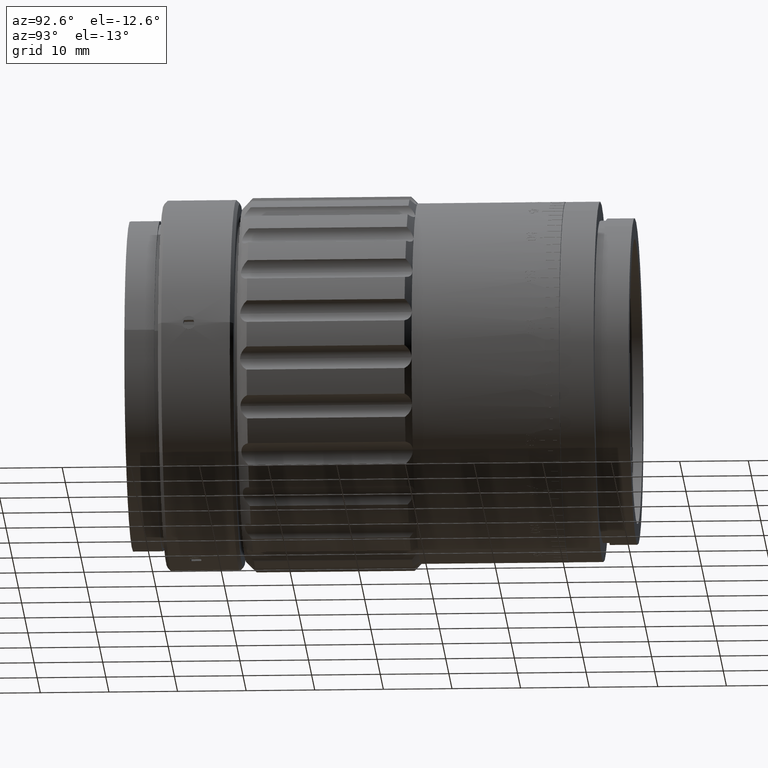
[diagram: clean part render]
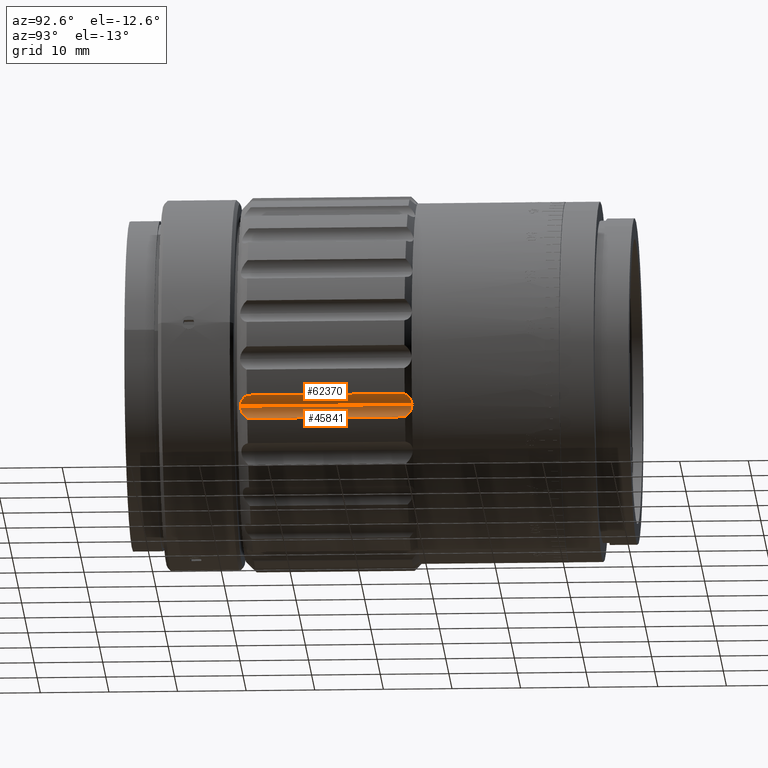
[diagram: same view with one multi-face feature highlighted, each face labeled with its STEP entity id]
A machine part, auxiliary view. The highlighted faces form ONE feature: a constant-radius fillet chain: 2 tangent blend faces with common blend radius 2 mm. The faces share edges in the B-rep.
Their STEP definitions:
[1] entity #45841 (Cylinder):
#361 = CARTESIAN_POINT ( 'NONE',  ( -13.12500000000006000, -28.21457821189758900, 22.73316684934155800 ) ) ;
#423 = B_SPLINE_CURVE_WITH_KNOTS ( 'NONE', 3,
 ( #76396, #43228, #65287, #18623, #12224, #24499, #71132, #18355, #31517, #51896, #71688, #5229, #25350, #51055 ),
 .UNSPECIFIED., .F., .F.,
 ( 4, 2, 2, 2, 2, 2, 4 ),
 ( 2.979895395329111000E-007, 0.0005735843058146349300, 0.001146870622089737100, 0.001433513780227283600, 0.001720156938364830100, 0.002006800096502376400, 0.002293443254639922900 ),
 .UNSPECIFIED. ) ;
#444 = CARTESIAN_POINT ( 'NONE',  ( -12.55499077404264000, -28.06509218753951600, 23.22307913054044100 ) ) ;
#722 = CARTESIAN_POINT ( 'NONE',  ( -12.12595701971777700, -27.21457821189765600, 24.40335358830742900 ) ) ;
#5229 = CARTESIAN_POINT ( 'NONE',  ( -12.96057895350930200, -3.222243727743240100, 22.83631678320358600 ) ) ;
#6866 = CARTESIAN_POINT ( 'NONE',  ( -12.80495319060156600, -28.18336728292411300, 22.95138981050821400 ) ) ;
#10563 = ORIENTED_EDGE ( 'NONE', *, *, #16824, .T. ) ;
#11155 = DIRECTION ( 'NONE',  ( 0.5000000000000006700, 0.0000000000000000000, -0.8660254037844382600 ) ) ;
#11705 = CARTESIAN_POINT ( 'NONE',  ( -14.12500000000006200, -2.714578211897591900, 24.46521765691043600 ) ) ;
#12109 = CARTESIAN_POINT ( 'NONE',  ( -12.95847872532791500, -28.21457821189759600, 22.82930795209932000 ) ) ;
#12224 = CARTESIAN_POINT ( 'NONE',  ( -12.28495461717044000, -3.626543446999198000, 23.66347315926434900 ) ) ;
#14138 = CARTESIAN_POINT ( 'NONE',  ( -12.40594440328831800, -27.94445593749853900, 23.43958839450126400 ) ) ;
#15299 = ORIENTED_EDGE ( 'NONE', *, *, #84805, .T. ) ;
#16824 = EDGE_CURVE ( 'NONE', #62252, #51736, #64587, .T. ) ;
#18355 = CARTESIAN_POINT ( 'NONE',  ( -12.55448674485746700, -3.364387262749400300, 23.22371866839284800 ) ) ;
#18623 = CARTESIAN_POINT ( 'NONE',  ( -12.22741002583321700, -3.735120404520082100, 23.81517680416628100 ) ) ;
#19900 = EDGE_CURVE ( 'NONE', #58534, #81024, #67540, .T. ) ;
#24499 = CARTESIAN_POINT ( 'NONE',  ( -12.40542373931104500, -3.485196456495961700, 23.44042607016169600 ) ) ;
#25350 = CARTESIAN_POINT ( 'NONE',  ( -13.04163485494421000, -3.214578211897678000, 22.78129773828057500 ) ) ;
#26398 = CARTESIAN_POINT ( 'NONE',  ( -13.12500000000006000, -28.21457821189758900, 22.73316684934155800 ) ) ;
#27538 = ORIENTED_EDGE ( 'NONE', *, *, #35908, .T. ) ;
#28956 = ORIENTED_EDGE ( 'NONE', *, *, #19900, .T. ) ;
#31517 = CARTESIAN_POINT ( 'NONE',  ( -12.61309592739448100, -3.329889188454530700, 23.15269362647157400 ) ) ;
#32812 = CARTESIAN_POINT ( 'NONE',  ( -13.12500000000006000, -2.714578211897591900, 22.73316684934155800 ) ) ;
#35016 = EDGE_LOOP ( 'NONE', ( #15299, #28956, #27538, #10563 ) ) ;
#35908 = EDGE_CURVE ( 'NONE', #81024, #62252, #68345, .T. ) ;
#40708 = CARTESIAN_POINT ( 'NONE',  ( -12.15061308000423600, -27.46505317721100100, 24.11114494454803000 ) ) ;
#43228 = CARTESIAN_POINT ( 'NONE',  ( -12.13045825504263000, -4.086325021261123100, 24.25790303709179700 ) ) ;
#45841 = ADVANCED_FACE ( 'NONE', ( #80181 ), #75696, .F. ) ;
#47396 = DIRECTION ( 'NONE',  ( -0.0000000000000000000, 1.000000000000000000, 0.0000000000000000000 ) ) ;
#47688 = CARTESIAN_POINT ( 'NONE',  ( -12.45138271275716200, -27.98758608644783400, 23.36665392907040600 ) ) ;
#51055 = CARTESIAN_POINT ( 'NONE',  ( -13.12500000000006000, -3.214578211897678500, 22.73316684934155800 ) ) ;
#51736 = VERTEX_POINT ( 'NONE', #66987 ) ;
#51896 = CARTESIAN_POINT ( 'NONE',  ( -12.74083217870751000, -3.273849528159984400, 23.01861726366457700 ) ) ;
#53169 = VECTOR ( 'NONE', #47396, 1000.000000000000000 ) ;
#54376 = CARTESIAN_POINT ( 'NONE',  ( -12.22778811058596600, -27.69496217823255100, 23.81394333517184600 ) ) ;
#57257 = DIRECTION ( 'NONE',  ( 0.0000000000000000000, -1.000000000000000000, -0.0000000000000000000 ) ) ;
#58534 = VERTEX_POINT ( 'NONE', #60824 ) ;
#60219 = CARTESIAN_POINT ( 'NONE',  ( -12.12595701971777700, -15.71457821189758900, 24.40335358830742500 ) ) ;
#60824 = CARTESIAN_POINT ( 'NONE',  ( -13.12500000000006000, -3.214578211897678500, 22.73316684934155800 ) ) ;
#62252 = VERTEX_POINT ( 'NONE', #69227 ) ;
#64587 = LINE ( 'NONE', #60219, #53169 ) ;
#65287 = CARTESIAN_POINT ( 'NONE',  ( -12.15062295426933200, -3.964274970068865800, 24.11133052577052300 ) ) ;
#66913 = CARTESIAN_POINT ( 'NONE',  ( -12.13045732573770500, -27.34280492395364300, 24.25793306616250800 ) ) ;
#66987 = CARTESIAN_POINT ( 'NONE',  ( -12.12595701971777600, -4.214578211897617200, 24.40335358830743200 ) ) ;
#67540 = LINE ( 'NONE', #32812, #75866 ) ;
#68345 = B_SPLINE_CURVE_WITH_KNOTS ( 'NONE', 3,
 ( #26398, #12109, #6866, #80895, #444, #47688, #14138, #74744, #54376, #40708, #66913, #722 ),
 .UNSPECIFIED., .F., .F.,
 ( 4, 2, 2, 2, 2, 4 ),
 ( 0.002293443254639918100, 0.002866010891116029500, 0.003152294709354083600, 0.003438578527592137800, 0.004011146164068253900, 0.004583713800544370900 ),
 .UNSPECIFIED. ) ;
#69227 = CARTESIAN_POINT ( 'NONE',  ( -12.12595701971777700, -27.21457821189765600, 24.40335358830742900 ) ) ;
#71132 = CARTESIAN_POINT ( 'NONE',  ( -12.45097098984468100, -3.441932837596963300, 23.36728391745847200 ) ) ;
#71688 = CARTESIAN_POINT ( 'NONE',  ( -12.81008659143846300, -3.252025529498173900, 22.95518548577682000 ) ) ;
#72369 = AXIS2_PLACEMENT_3D ( 'NONE', #11705, #57257, #11155 ) ;
#74744 = CARTESIAN_POINT ( 'NONE',  ( -12.28593373872502800, -27.80398875942940500, 23.66141083893508700 ) ) ;
#75696 = CYLINDRICAL_SURFACE ( 'NONE', #72369, 2.000000000000002700 ) ;
#75866 = VECTOR ( 'NONE', #78568, 1000.000000000000000 ) ;
#76396 = CARTESIAN_POINT ( 'NONE',  ( -12.12595701971777600, -4.214578211897617200, 24.40335358830743200 ) ) ;
#78568 = DIRECTION ( 'NONE',  ( 0.0000000000000000000, -1.000000000000000000, -0.0000000000000000000 ) ) ;
#80181 = FACE_OUTER_BOUND ( 'NONE', #35016, .T. ) ;
#80895 = CARTESIAN_POINT ( 'NONE',  ( -12.61355657265214900, -28.09950435885614100, 23.15217220917698900 ) ) ;
#81024 = VERTEX_POINT ( 'NONE', #361 ) ;
#84805 = EDGE_CURVE ( 'NONE', #51736, #58534, #423, .T. ) ;
[2] entity #62370 (Cylinder):
#361 = CARTESIAN_POINT ( 'NONE',  ( -13.12500000000006000, -28.21457821189758900, 22.73316684934155800 ) ) ;
#458 = ORIENTED_EDGE ( 'NONE', *, *, #17033, .T. ) ;
#513 = VERTEX_POINT ( 'NONE', #38897 ) ;
#936 = LINE ( 'NONE', #55995, #69768 ) ;
#3088 = CARTESIAN_POINT ( 'NONE',  ( -14.94273114513992000, -27.34283140253415200, 22.63423652695944100 ) ) ;
#4728 = CARTESIAN_POINT ( 'NONE',  ( -14.94275761573046800, -4.086351499841627300, 22.63425073669311900 ) ) ;
#4939 = CARTESIAN_POINT ( 'NONE',  ( -15.07094563514953500, -4.214578211897617200, 22.70306361842751700 ) ) ;
#5791 = EDGE_CURVE ( 'NONE', #513, #81024, #50696, .T. ) ;
#11484 = CARTESIAN_POINT ( 'NONE',  ( -14.12500000000006200, -2.714578211897591900, 24.46521765691043600 ) ) ;
#17033 = EDGE_CURVE ( 'NONE', #44254, #513, #936, .T. ) ;
#17101 = CARTESIAN_POINT ( 'NONE',  ( -13.29654098636863500, -28.20691269605202200, 22.64234901309474400 ) ) ;
#19900 = EDGE_CURVE ( 'NONE', #58534, #81024, #67540, .T. ) ;
#21323 = B_SPLINE_CURVE_WITH_KNOTS ( 'NONE', 3,
 ( #83463, #37693, #57815, #64481, #31277, #24551, #37979, #84591, #44697, #50242, #4728, #51376 ),
 .UNSPECIFIED., .F., .F.,
 ( 4, 2, 2, 2, 2, 4 ),
 ( 0.002293443254639922900, 0.002866010891116039500, 0.003152294709354097500, 0.003438578527592155600, 0.004011146164068266900, 0.004583713800544378700 ),
 .UNSPECIFIED. ) ;
#23514 = CARTESIAN_POINT ( 'NONE',  ( -14.80571327722585700, -27.46488145372639900, 22.57841341308878900 ) ) ;
#24551 = CARTESIAN_POINT ( 'NONE',  ( -14.01042454763591200, -3.441570337347434000, 22.46654070602527400 ) ) ;
#27509 = ORIENTED_EDGE ( 'NONE', *, *, #40010, .T. ) ;
#28089 = AXIS2_PLACEMENT_3D ( 'NONE', #11484, #50600, #30780 ) ;
#30236 = CARTESIAN_POINT ( 'NONE',  ( -14.35069158910896200, -27.80261297679607300, 22.47081936244067500 ) ) ;
#30780 = DIRECTION ( 'NONE',  ( 0.5000000000000006700, 0.0000000000000000000, -0.8660254037844382600 ) ) ;
#31277 = CARTESIAN_POINT ( 'NONE',  ( -13.83428109412298900, -3.364064236255755300, 22.48448051987037000 ) ) ;
#32812 = CARTESIAN_POINT ( 'NONE',  ( -13.12500000000006000, -2.714578211897591900, 22.73316684934155800 ) ) ;
#37693 = CARTESIAN_POINT ( 'NONE',  ( -13.29152127467221000, -3.214578211897679300, 22.63702574658379200 ) ) ;
#37979 = CARTESIAN_POINT ( 'NONE',  ( -14.09630680224488900, -3.484700486296729200, 22.46365720843565900 ) ) ;
#38897 = CARTESIAN_POINT ( 'NONE',  ( -15.07094563514953700, -27.21457821189765600, 22.70306361842751700 ) ) ;
#40010 = EDGE_CURVE ( 'NONE', #58534, #44254, #21323, .T. ) ;
#42839 = EDGE_LOOP ( 'NONE', ( #79934, #27509, #458, #71585 ) ) ;
#43679 = CARTESIAN_POINT ( 'NONE',  ( -13.12500000000006000, -28.21457821189758900, 22.73316684934155800 ) ) ;
#44254 = VERTEX_POINT ( 'NONE', #4939 ) ;
#44677 = CYLINDRICAL_SURFACE ( 'NONE', #28089, 2.000000000000002700 ) ;
#44697 = CARTESIAN_POINT ( 'NONE',  ( -14.50958583724900200, -3.734194245562724800, 22.49654680344665500 ) ) ;
#49775 = CARTESIAN_POINT ( 'NONE',  ( -13.56429122097086200, -28.15530689563527700, 22.54319296394719500 ) ) ;
#50067 = CARTESIAN_POINT ( 'NONE',  ( -13.20836514505590200, -28.21457821189758900, 22.68503596040252600 ) ) ;
#50242 = CARTESIAN_POINT ( 'NONE',  ( -14.80555749630526200, -3.964103246584270500, 22.57831207111313200 ) ) ;
#50600 = DIRECTION ( 'NONE',  ( 0.0000000000000000000, -1.000000000000000000, -0.0000000000000000000 ) ) ;
#50696 = B_SPLINE_CURVE_WITH_KNOTS ( 'NONE', 3,
 ( #56476, #3088, #23514, #69850, #30236, #70441, #63159, #70155, #75967, #49775, #83583, #17101, #50067, #43679 ),
 .UNSPECIFIED., .F., .F.,
 ( 4, 2, 2, 2, 2, 2, 4 ),
 ( 2.979895395351431900E-007, 0.0005735843058146334100, 0.001146870622089731600, 0.001433513780227278400, 0.001720156938364824900, 0.002006800096502371600, 0.002293443254639918100 ),
 .UNSPECIFIED. ) ;
#51376 = CARTESIAN_POINT ( 'NONE',  ( -15.07094563514953500, -4.214578211897617200, 22.70306361842751700 ) ) ;
#55995 = CARTESIAN_POINT ( 'NONE',  ( -15.07094563514953500, -15.71457821189758900, 22.70306361842751400 ) ) ;
#56476 = CARTESIAN_POINT ( 'NONE',  ( -15.07094563514953700, -27.21457821189765600, 22.70306361842751700 ) ) ;
#57815 = CARTESIAN_POINT ( 'NONE',  ( -13.47401003275869900, -3.245789140871162500, 22.56510966258563800 ) ) ;
#58534 = VERTEX_POINT ( 'NONE', #60824 ) ;
#60824 = CARTESIAN_POINT ( 'NONE',  ( -13.12500000000006000, -3.214578211897678500, 22.73316684934155800 ) ) ;
#62370 = ADVANCED_FACE ( 'NONE', ( #78006 ), #44677, .F. ) ;
#63159 = CARTESIAN_POINT ( 'NONE',  ( -14.01117599504030100, -27.98722358619830100, 22.46649913771777600 ) ) ;
#63252 = DIRECTION ( 'NONE',  ( 0.0000000000000000000, -1.000000000000000000, -0.0000000000000000000 ) ) ;
#64481 = CARTESIAN_POINT ( 'NONE',  ( -13.74359099961334300, -3.329652064939125000, 22.49974652857740100 ) ) ;
#67540 = LINE ( 'NONE', #32812, #75866 ) ;
#69768 = VECTOR ( 'NONE', #63252, 1000.000000000000000 ) ;
#69850 = CARTESIAN_POINT ( 'NONE',  ( -14.51084309510934400, -27.69403601927518800, 22.49683610694321700 ) ) ;
#70155 = CARTESIAN_POINT ( 'NONE',  ( -13.83508696474243700, -28.06476916104585900, 22.48436378671795700 ) ) ;
#70441 = CARTESIAN_POINT ( 'NONE',  ( -14.09729258263559300, -27.94395996729930700, 22.46362513803472200 ) ) ;
#71585 = ORIENTED_EDGE ( 'NONE', *, *, #5791, .T. ) ;
#75866 = VECTOR ( 'NONE', #78568, 1000.000000000000000 ) ;
#75967 = CARTESIAN_POINT ( 'NONE',  ( -13.74427288286525000, -28.09926723534073300, 22.49960830672941000 ) ) ;
#78006 = FACE_OUTER_BOUND ( 'NONE', #42839, .T. ) ;
#78568 = DIRECTION ( 'NONE',  ( 0.0000000000000000000, -1.000000000000000000, -0.0000000000000000000 ) ) ;
#79934 = ORIENTED_EDGE ( 'NONE', *, *, #19900, .F. ) ;
#81024 = VERTEX_POINT ( 'NONE', #361 ) ;
#83463 = CARTESIAN_POINT ( 'NONE',  ( -13.12500000000006000, -3.214578211897678500, 22.73316684934155800 ) ) ;
#83583 = CARTESIAN_POINT ( 'NONE',  ( -13.47473048354737400, -28.17713089429708600, 22.57145315575249400 ) ) ;
#84591 = CARTESIAN_POINT ( 'NONE',  ( -14.34841600653578700, -3.625167664365868800, 22.47063614641571000 ) ) ;